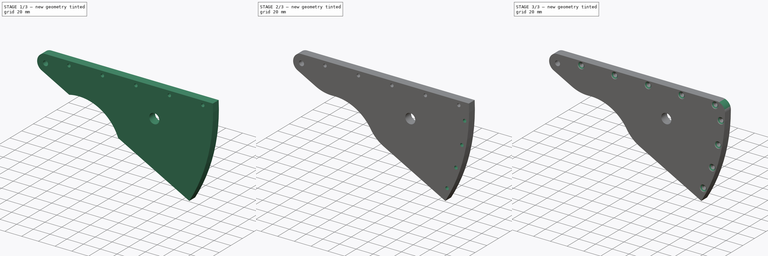
[diagram: build sequence overview — one tinted view per stage of 3, left to right]
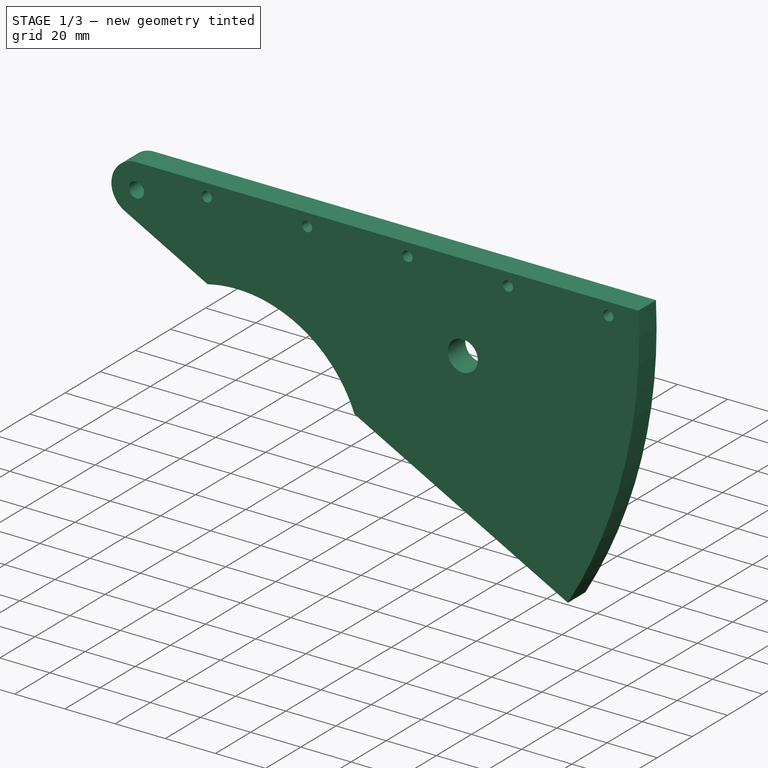
[diagram: stage 1 of 3 — iso view after this stage's code; geometry added in this stage tinted green]
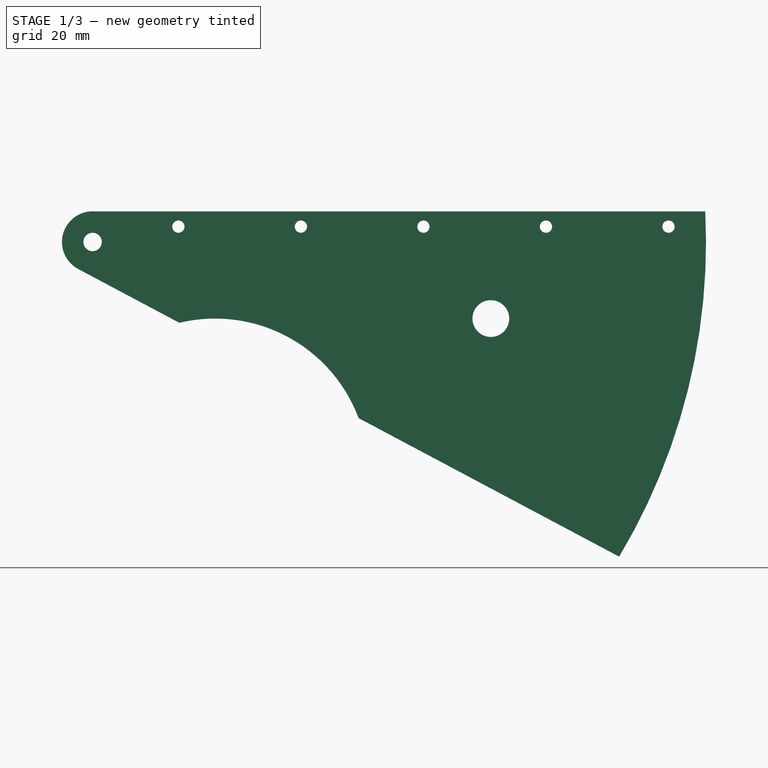
[diagram: stage 1 of 3 — front view after this stage's code; geometry added in this stage tinted green]
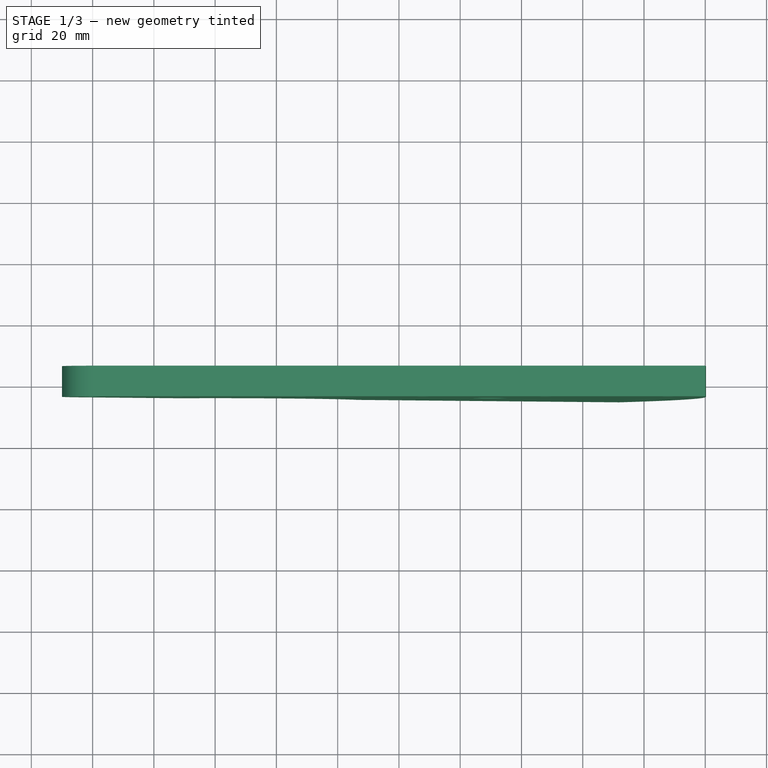
[diagram: stage 1 of 3 — top view after this stage's code; geometry added in this stage tinted green]
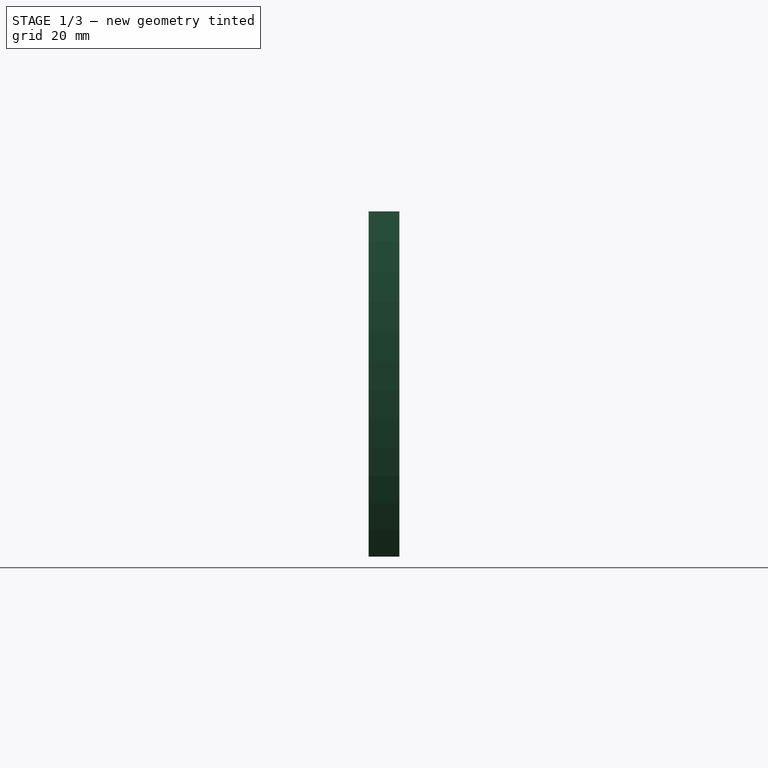
[diagram: stage 1 of 3 — right view after this stage's code; geometry added in this stage tinted green]
FCSTD DOCUMENT  (FreeCAD 0.18R4 (GitTag))
Label: Flapper LHS
License: All rights reserved
LicenseURL: http://en.wikipedia.org/wiki/All_rights_reserved
objects: Sketcher::SketchObject×3, PartDesign::Pocket×2, PartDesign::Fillet×2, PartDesign::Pad×1, PartDesign::PolarPattern×1, PartDesign::Chamfer×1, PartDesign::Body×1, App::Part×1
note: 14 computed .brp shape members not serialized (recipe doc carries the construction recipe); baked Part::Feature solids carry a one-line shape summary decoded from their .brp

FEATURE [Sketcher::SketchObject] Sketch
  MapMode = 5
  Placement = pos=(0,0,0) rot=(1,0,0;1.5708rad)
  Support = -> [XZ_Plane001]
  sketch-geometry (15):
    g0: Circle CenterX=0 CenterY=0 CenterZ=0 NormalX=0 NormalY=0 NormalZ=1 AngleXU=0 Radius=3
    g1: ArcOfCircle CenterX=0 CenterY=0 CenterZ=0 NormalX=0 NormalY=0 NormalZ=1 AngleXU=0 Radius=10 StartAngle=1.5708 EndAngle=4.2237
    g2: LineSegment StartX=200 StartY=10 StartZ=0 EndX=0 EndY=10 EndZ=0
    g3: LineSegment StartX=171.895 StartY=-102.724 StartZ=0 EndX=-4.69472 EndY=-8.82948 EndZ=0
    g4: ArcOfCircle CenterX=0 CenterY=0 CenterZ=0 NormalX=0 NormalY=0 NormalZ=1 AngleXU=0 Radius=200.25 StartAngle=5.74453 EndAngle=6.33314
    g5: Circle CenterX=130 CenterY=-25 CenterZ=0 NormalX=0 NormalY=0 NormalZ=1 AngleXU=0 Radius=6
    g6: Circle CenterX=28 CenterY=5 CenterZ=0 NormalX=0 NormalY=0 NormalZ=1 AngleXU=0 Radius=2
    g7: Circle CenterX=68 CenterY=5 CenterZ=0 NormalX=0 NormalY=0 NormalZ=1 AngleXU=0 Radius=2
    g8: Circle CenterX=108 CenterY=5 CenterZ=0 NormalX=0 NormalY=0 NormalZ=1 AngleXU=0 Radius=2
    g9: Circle CenterX=148 CenterY=5 CenterZ=0 NormalX=0 NormalY=0 NormalZ=1 AngleXU=0 Radius=2
    g10: Circle CenterX=188 CenterY=5 CenterZ=0 NormalX=0 NormalY=0 NormalZ=1 AngleXU=0 Radius=2
    g11: LineSegment [constr] StartX=188 StartY=5 StartZ=0 EndX=148 EndY=5 EndZ=0
    g12: LineSegment [constr] StartX=148 StartY=5 StartZ=0 EndX=108 EndY=5 EndZ=0
    g13: LineSegment [constr] StartX=108 StartY=5 StartZ=0 EndX=68 EndY=5 EndZ=0
    g14: LineSegment [constr] StartX=68 StartY=5 StartZ=0 EndX=28 EndY=5 EndZ=0
  constraints (38):
    c: Coincident(g0,g-1)
    c: Radius(g0) = 3
    c: Coincident(g1,g0)
    c: Horizontal(g2)
    c: Tangent(g3,g1) = 1.5708
    c: Radius(g1) = 10
    c: DistanceX(g2,g2) = 200
    c: Tangent(g2,g1) = -1.5708
    c: Coincident(g4,g2)
    c: Coincident(g4,g3)
    c: Coincident(g4,g0)
    c: Angle(g3,g2) = 0.488692
    c: DistanceY(g5,g0) = 25
    c: DistanceX(g0,g5) = 130
    c: Radius(g5) = 6
    c: Coincident(g11,g10)
    c: Coincident(g11,g9)
    c: Coincident(g12,g9)
    c: Coincident(g12,g8)
    c: Horizontal(g12)
    c: Coincident(g12,g13)
    c: Coincident(g13,g7)
    c: Horizontal(g13)
    c: Coincident(g13,g14)
    c: Coincident(g14,g6)
    c: Horizontal(g14)
    c: Horizontal(g11)
    c: Equal(g11,g12)
    c: Equal(g12,g13)
    c: Equal(g13,g14)
    c: DistanceX(g14,g14) = 40
    c: DistanceX(g10,g2) = 12
    c: DistanceY(g10,g2) = 5
    c: Equal(g9,g10)
    c: Equal(g10,g8)
    c: Equal(g8,g7)
    c: Equal(g7,g6)
    c: Radius(g6) = 2
FEATURE [PartDesign::Pad] Pad
  Length = 10
  Length2 = 100
  Midplane = true
  Placement = pos=(0,0,0) rot=(1,0,0;1.5708rad)
  Profile = -> Sketch
  Refine = true
  Type = 0
FEATURE [Sketcher::SketchObject] Sketch001
  MapMode = 5
  Placement = pos=(0,0,0) rot=(1,0,0;1.5708rad)
  Support = -> [XZ_Plane001]
  sketch-geometry (1):
    g0: Circle CenterX=40 CenterY=-75 CenterZ=0 NormalX=0 NormalY=0 NormalZ=1 AngleXU=0 Radius=50
  constraints (3):
    c: Radius(g0) = 50
    c: DistanceX(g-1,g0) = 40
    c: DistanceY(g0,g-1) = 75
FEATURE [PartDesign::Pocket] Pocket
  BaseFeature = -> Pad
  Length = 10
  Length2 = 100
  Midplane = true
  Placement = pos=(0,0,0) rot=(1,0,0;1.5708rad)
  Profile = -> Sketch001
  Refine = true
  Reversed = true
  Type = 0
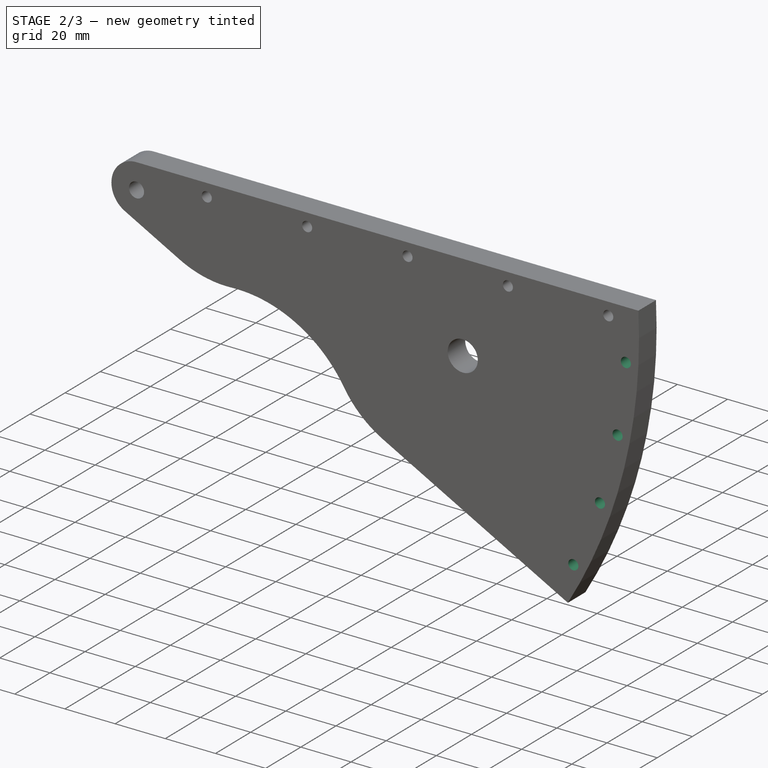
[diagram: stage 2 of 3 — iso view after this stage's code; geometry added in this stage tinted green]
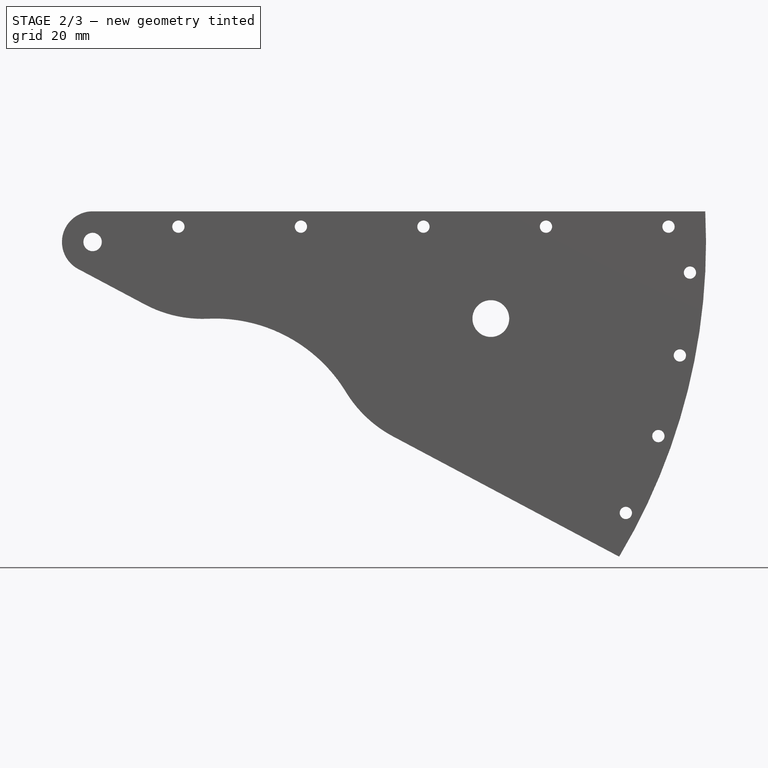
[diagram: stage 2 of 3 — front view after this stage's code; geometry added in this stage tinted green]
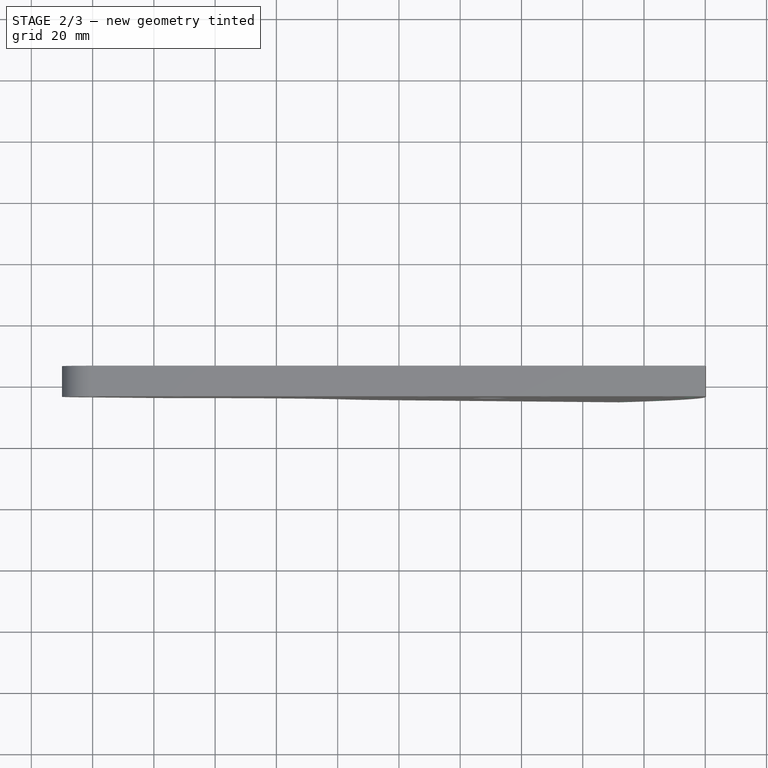
[diagram: stage 2 of 3 — top view after this stage's code; geometry added in this stage tinted green]
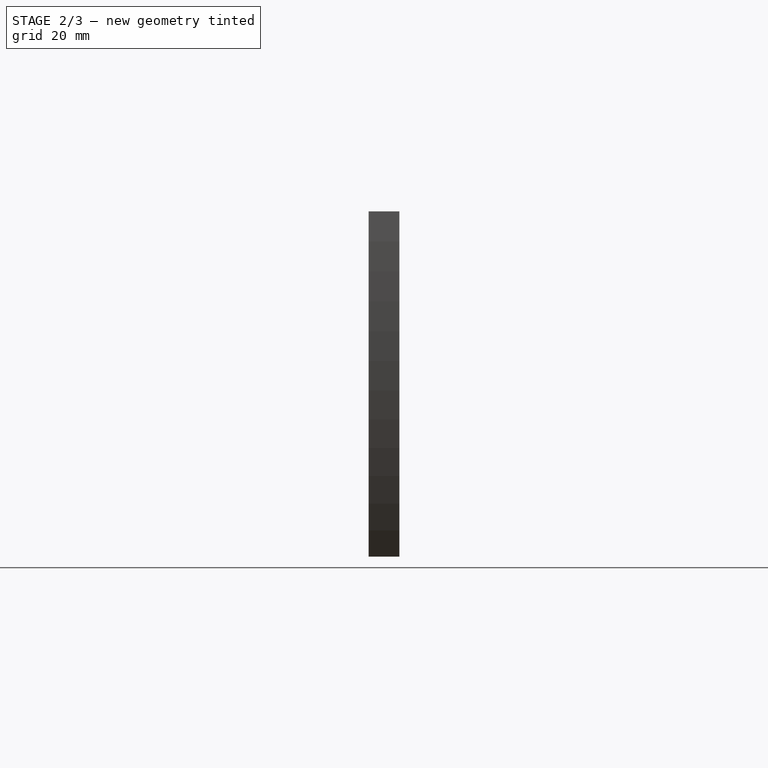
[diagram: stage 2 of 3 — right view after this stage's code; geometry added in this stage tinted green]
FEATURE [PartDesign::Fillet] Fillet
  Base = -> Pocket [Edge10,Edge32]
  BaseFeature = -> Pocket
  Placement = pos=(0,0,0) rot=(1,0,0;1.5708rad)
  Radius = 40
FEATURE [Sketcher::SketchObject] Sketch002
  ExternalGeometry = -> [Fillet]
  MapMode = 5
  Placement = pos=(0,0,0) rot=(1,0,0;1.5708rad)
  Support = -> [XZ_Plane001]
  sketch-geometry (2):
    g0: Circle CenterX=195 CenterY=-10 CenterZ=0 NormalX=0 NormalY=0 NormalZ=1 AngleXU=0 Radius=2
    g1: ArcOfCircle [constr] CenterX=0 CenterY=0 CenterZ=0 NormalX=0 NormalY=0 NormalZ=1 AngleXU=0 Radius=195.256 StartAngle=5.74326 EndAngle=6.33442
  constraints (7):
    c: Equal(g-3,g0)
    c: Coincident(g1,g-1)
    c: PointOnObject(g1,g-4)
    c: DistanceX(g1,g-4) = 5
    c: PointOnObject(g1,g-5)
    c: PointOnObject(g0,g1)
    c: DistanceY(g0,g-4) = 20
FEATURE [PartDesign::Pocket] Pocket001
  BaseFeature = -> Fillet
  Length = 10
  Length2 = 100
  Midplane = true
  Placement = pos=(0,0,0) rot=(1,0,0;1.5708rad)
  Profile = -> Sketch002
  Refine = true
  Type = 0
FEATURE [PartDesign::PolarPattern] PolarPattern
  Angle = 24
  Axis = -> Y_Axis001
  BaseFeature = -> Pocket001
  Occurrences = 4
  Originals = -> [Pocket001]
  Placement = pos=(0,0,0) rot=(1,0,0;1.5708rad)
  Refine = true
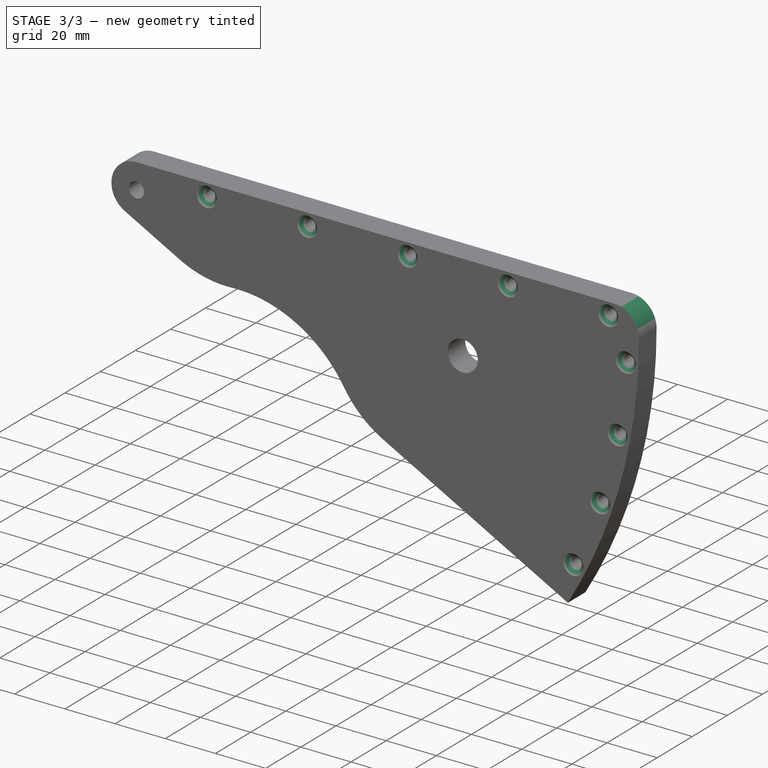
[diagram: stage 3 of 3 — iso view after this stage's code; geometry added in this stage tinted green]
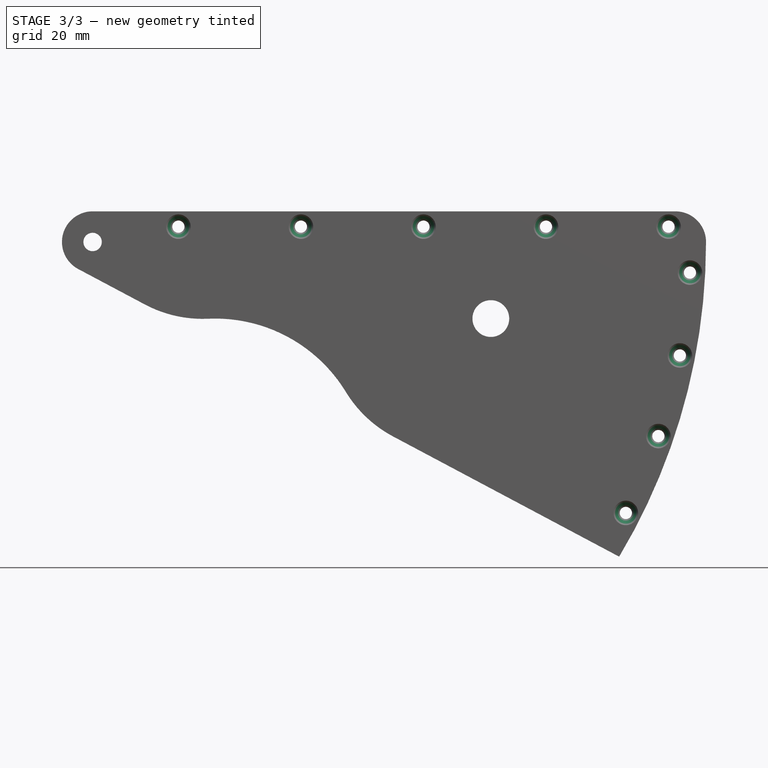
[diagram: stage 3 of 3 — front view after this stage's code; geometry added in this stage tinted green]
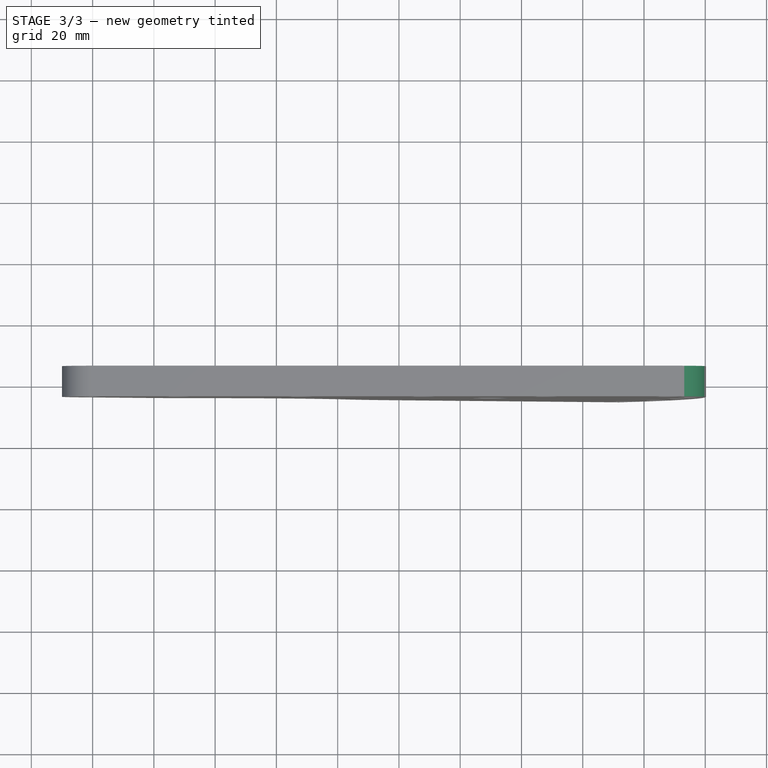
[diagram: stage 3 of 3 — top view after this stage's code; geometry added in this stage tinted green]
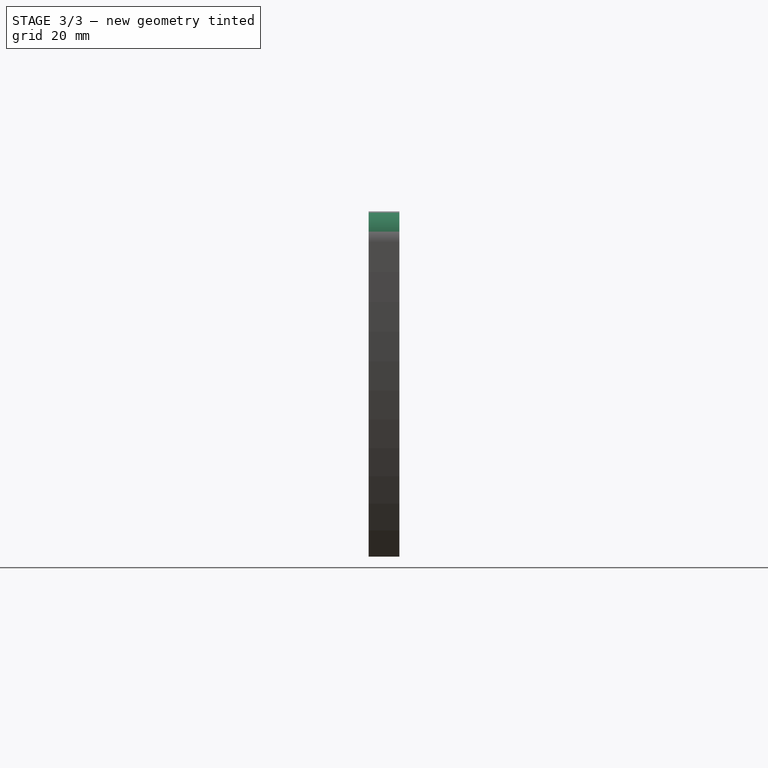
[diagram: stage 3 of 3 — right view after this stage's code; geometry added in this stage tinted green]
FEATURE [PartDesign::Chamfer] Chamfer
  Base = -> PolarPattern [Edge41,Edge42,Edge32,Edge34,Edge35,Edge36,Edge37,Edge40,Edge39]
  BaseFeature = -> PolarPattern
  Placement = pos=(0,0,0) rot=(1,0,0;1.5708rad)
  Size = 2
FEATURE [PartDesign::Fillet] Fillet001
  Base = -> Chamfer [Edge27]
  BaseFeature = -> Chamfer
  Placement = pos=(0,0,0) rot=(1,0,0;1.5708rad)
  Radius = 10
FEATURE [PartDesign::Body] Body
  Group = -> [Sketch,Pad,Sketch001,Pocket,Fillet,Sketch002,Pocket001,PolarPattern,Chamfer,Fillet001]
  Origin = -> Origin001
  Tip = -> Fillet001
FEATURE [App::Part] Part
  Group = -> [Body]
  Origin = -> Origin
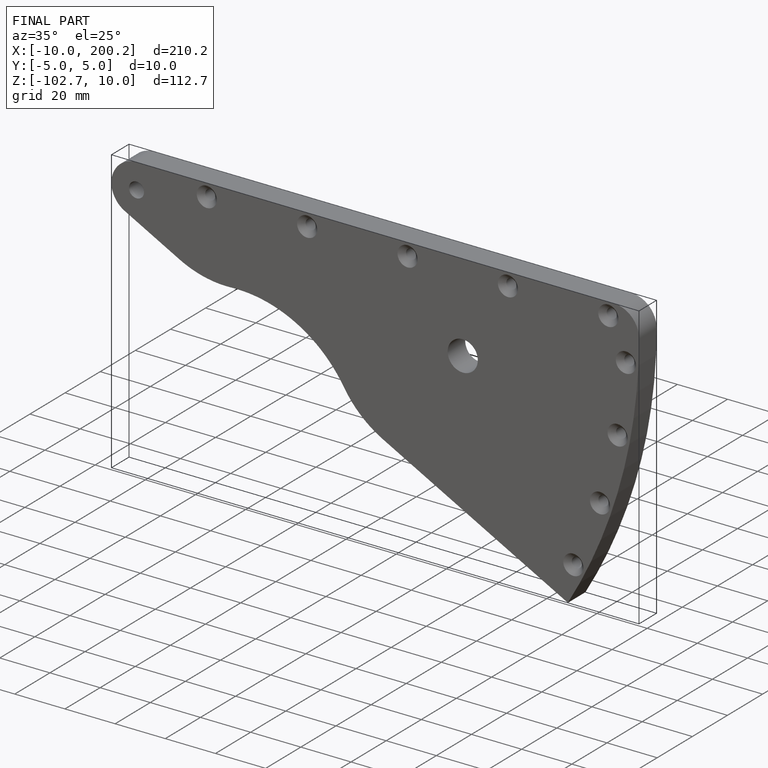
[diagram: finished part — iso view with bounding-box wireframe]
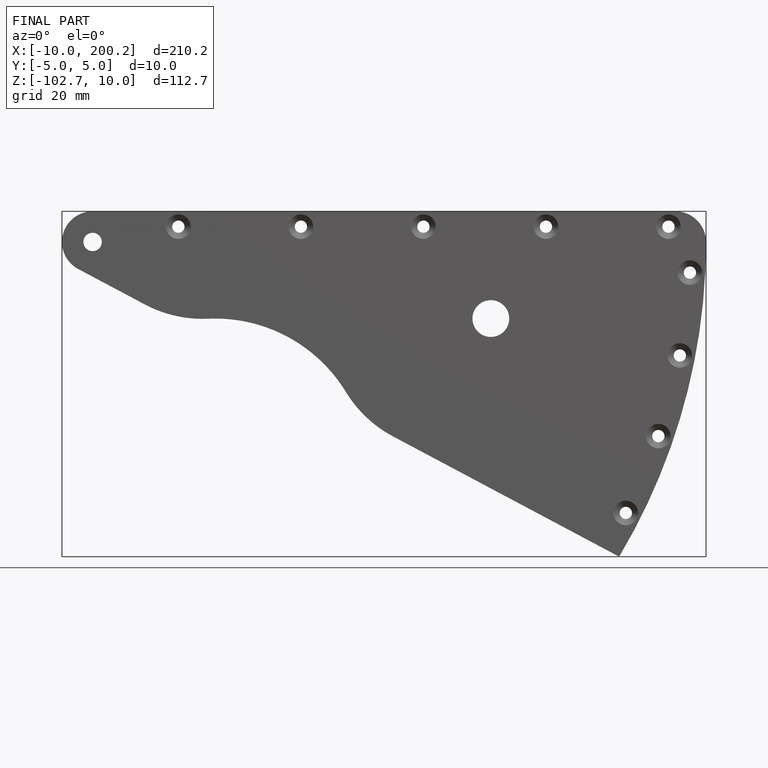
[diagram: finished part — front view with bounding-box wireframe]
